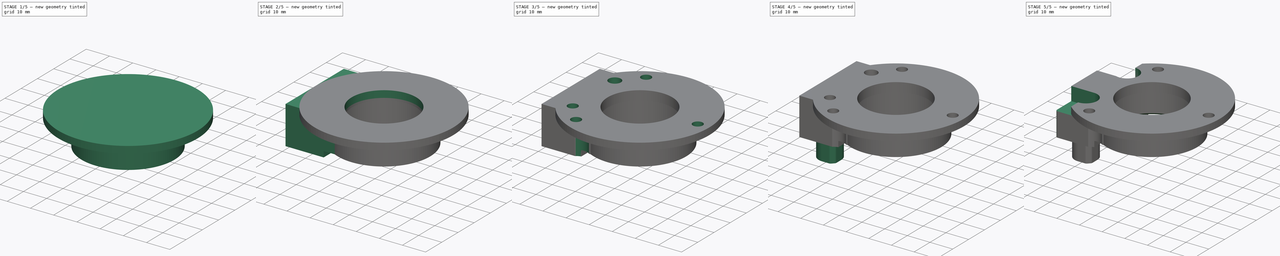
[diagram: build sequence overview — one tinted view per stage of 5, left to right]
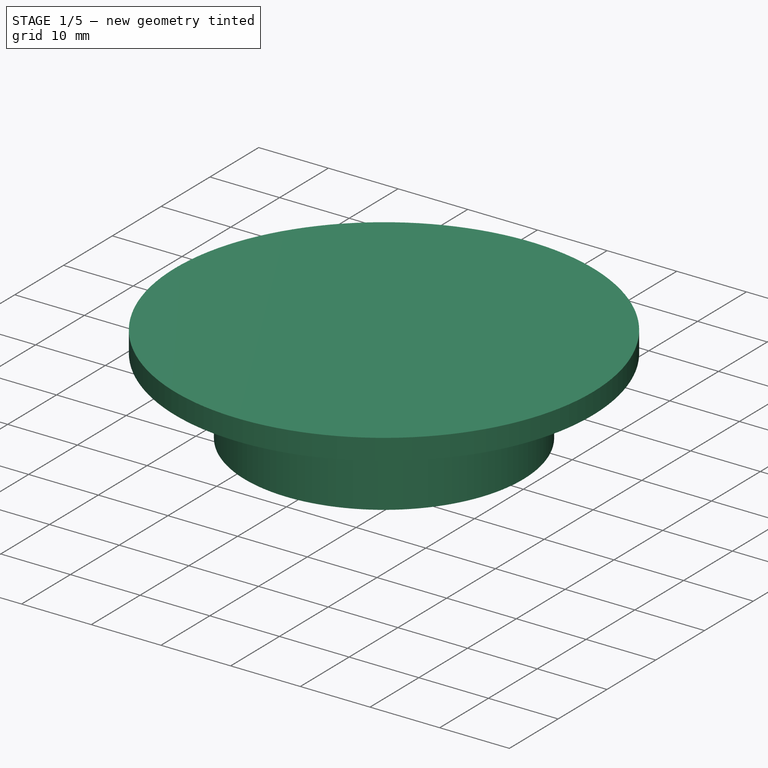
[diagram: stage 1 of 5 — iso view after this stage's code; geometry added in this stage tinted green]
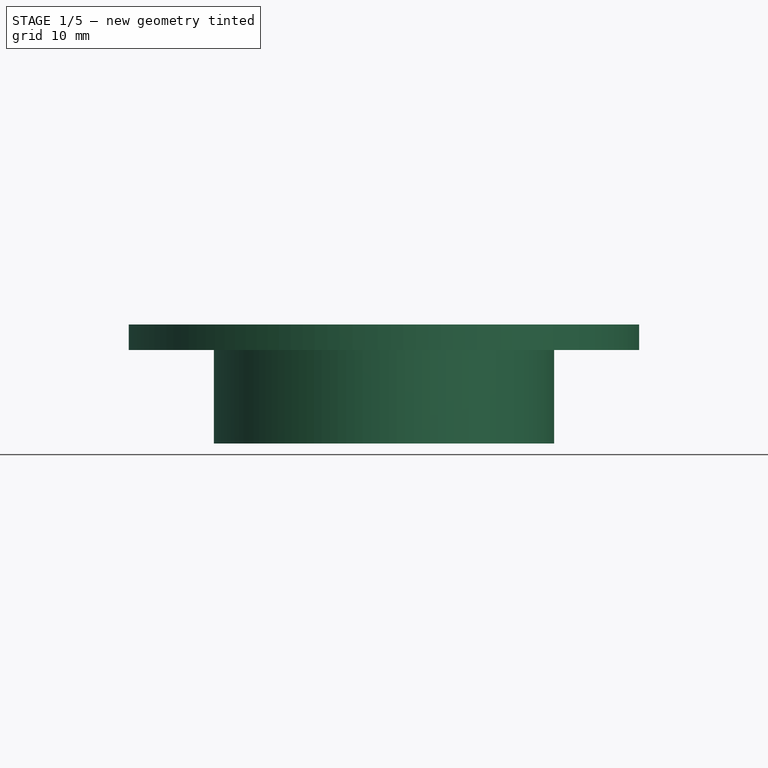
[diagram: stage 1 of 5 — front view after this stage's code; geometry added in this stage tinted green]
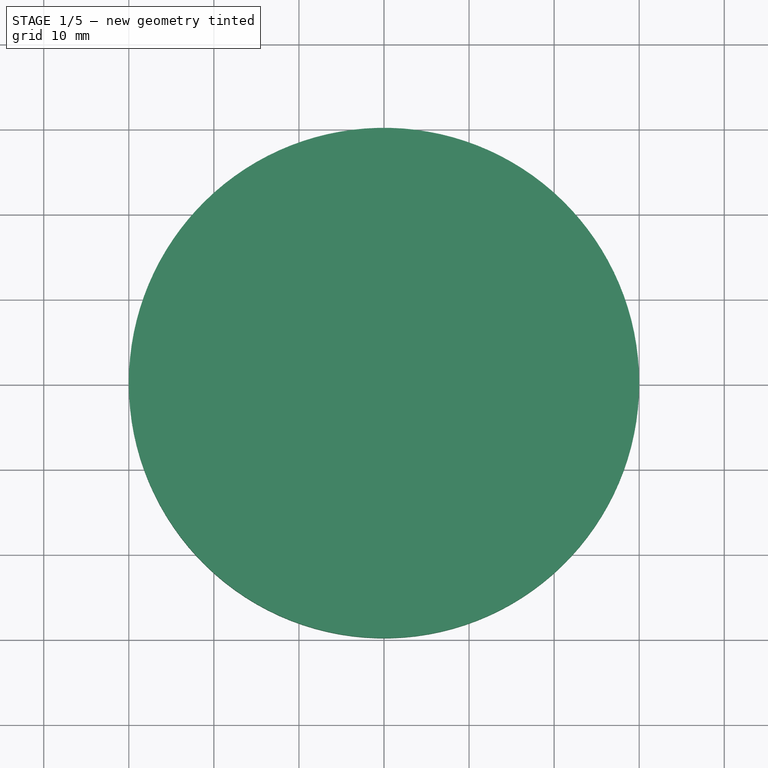
[diagram: stage 1 of 5 — top view after this stage's code; geometry added in this stage tinted green]
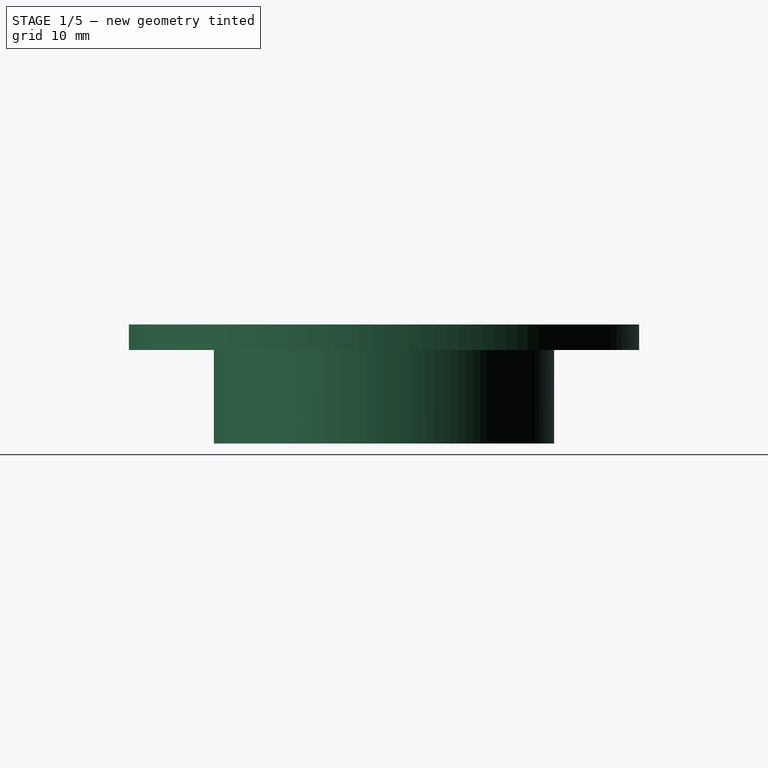
[diagram: stage 1 of 5 — right view after this stage's code; geometry added in this stage tinted green]
FCSTD DOCUMENT  (FreeCAD 0.19R24276 (Git))
Label: SC_v2_bear_support_V2_1
License: All rights reserved
LicenseURL: http://en.wikipedia.org/wiki/All_rights_reserved
objects: Sketcher::SketchObject×13, PartDesign::Pad×6, PartDesign::Pocket×6, PartDesign::Fillet×2, PartDesign::Chamfer×1, PartDesign::Body×1
note: 44 computed .brp shape members not serialized (recipe doc carries the construction recipe); baked Part::Feature solids carry a one-line shape summary decoded from their .brp

FEATURE [Sketcher::SketchObject] Sketch  label="Sketch_d32_d40"
  FullyConstrained = true
  MapMode = 5
  Support = -> [XY_Plane]
  sketch-geometry (2):
    g0: Circle CenterX=0 CenterY=0 CenterZ=0 NormalX=0 NormalY=0 NormalZ=1 AngleXU=0 Radius=16
    g1: Circle CenterX=0 CenterY=0 CenterZ=0 NormalX=0 NormalY=0 NormalZ=1 AngleXU=0 Radius=20
  constraints (4):
    c: Coincident(g0,g-1)
    c: Diameter(g0) = 32
    c: Coincident(g1,g-1)
    c: Diameter(g1) = 40
FEATURE [PartDesign::Pad] Pad  label="Pad_h11"
  Direction = (1,1,1)
  Length = 11
  Length2 = 100
  Profile = -> Sketch
  Type = 0
FEATURE [Sketcher::SketchObject] Sketch001  label="Sketch001_d60"
  FullyConstrained = true
  MapMode = 5
  Placement = pos=(0,0,11) rot=(0,0,1;0rad)
  Support = -> [Pad]
  sketch-geometry (1):
    g0: Circle CenterX=0 CenterY=0 CenterZ=0 NormalX=0 NormalY=0 NormalZ=1 AngleXU=0 Radius=30
  constraints (2):
    c: Coincident(g0,g-1)
    c: Diameter(g0) = 60
FEATURE [PartDesign::Pad] Pad001  label="Pad001_h3"
  BaseFeature = -> Pad
  Direction = (1,1,1)
  Length = 3
  Length2 = 100
  Profile = -> Sketch001
  Type = 0
FEATURE [Sketcher::SketchObject] Sketch002  label="Sketch002_d28_d32"
  FullyConstrained = true
  MapMode = 5
  Placement = pos=(0,0,11) rot=(1,0,0;3.14159rad)
  Support = -> [Pad001]
  sketch-geometry (2):
    g0: Circle CenterX=0 CenterY=0 CenterZ=0 NormalX=0 NormalY=0 NormalZ=1 AngleXU=0 Radius=14
    g1: Circle CenterX=0 CenterY=0 CenterZ=0 NormalX=0 NormalY=0 NormalZ=1 AngleXU=0 Radius=16
  constraints (4):
    c: Coincident(g0,g-1)
    c: Coincident(g1,g-1)
    c: Diameter(g1) = 32
    c: Diameter(g0) = 28
FEATURE [PartDesign::Pad] Pad002  label="Pad002_h1"
  BaseFeature = -> Pad001
  Direction = (1,1,1)
  Length = 1
  Length2 = 100
  Profile = -> Sketch002
  Type = 0
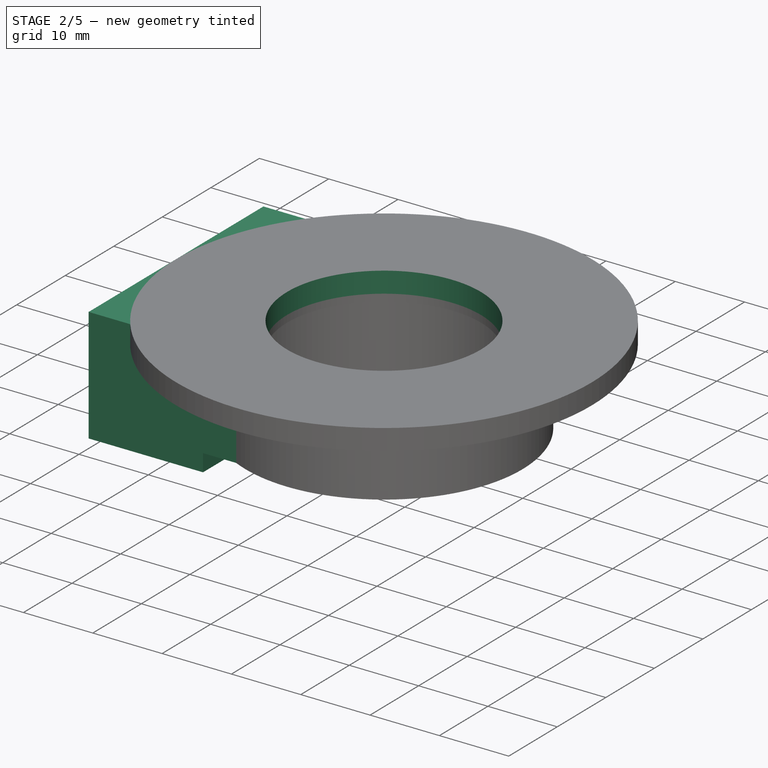
[diagram: stage 2 of 5 — iso view after this stage's code; geometry added in this stage tinted green]
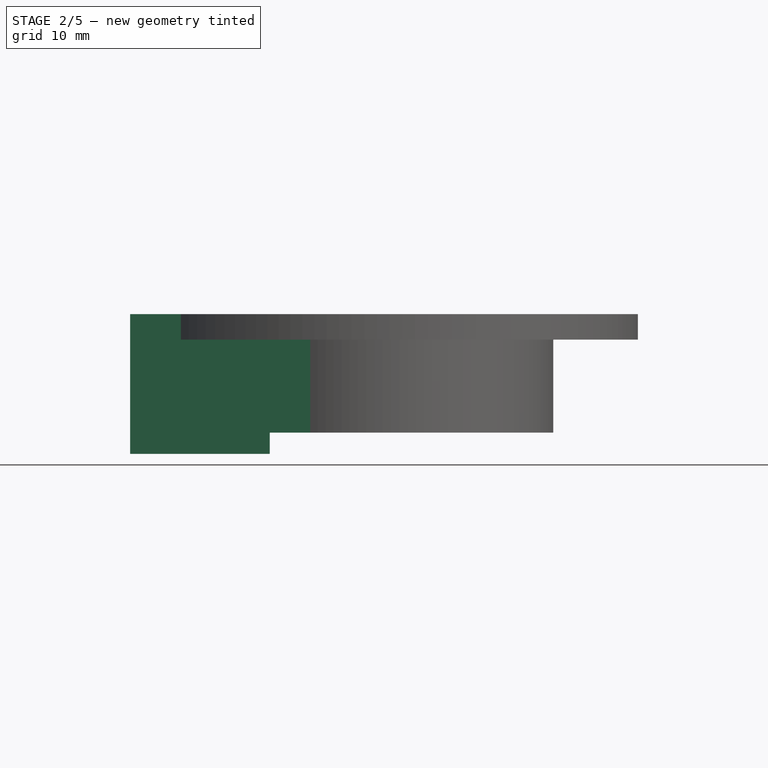
[diagram: stage 2 of 5 — front view after this stage's code; geometry added in this stage tinted green]
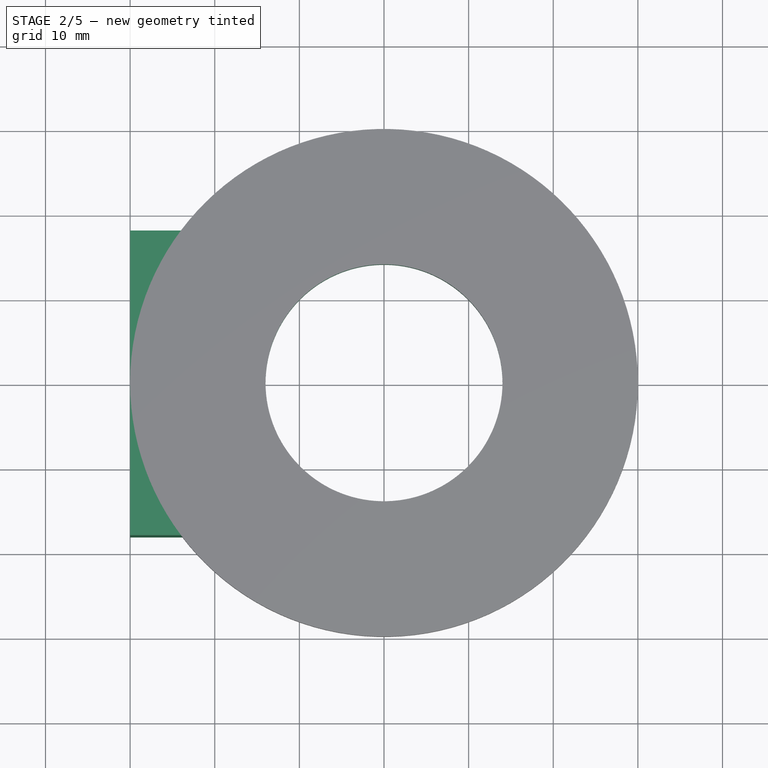
[diagram: stage 2 of 5 — top view after this stage's code; geometry added in this stage tinted green]
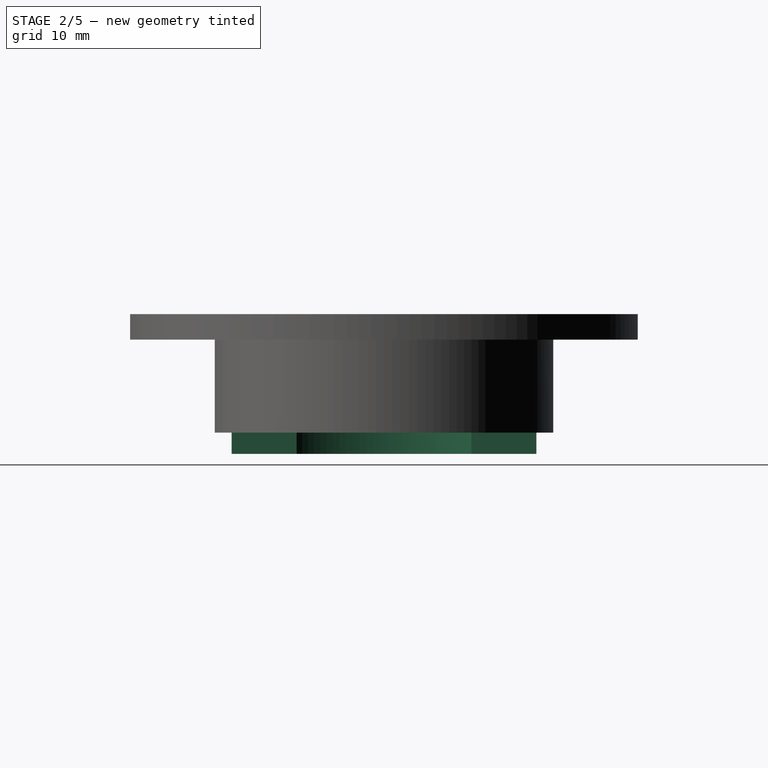
[diagram: stage 2 of 5 — right view after this stage's code; geometry added in this stage tinted green]
FEATURE [Sketcher::SketchObject] Sketch003  label="Sketch003_d28"
  FullyConstrained = true
  MapMode = 5
  Placement = pos=(0,0,11) rot=(1,0,0;3.14159rad)
  Support = -> [Pad002]
  sketch-geometry (1):
    g0: Circle CenterX=0 CenterY=0 CenterZ=0 NormalX=0 NormalY=0 NormalZ=1 AngleXU=0 Radius=14
  constraints (2):
    c: Coincident(g0,g-1)
    c: Diameter(g0) = 28
FEATURE [PartDesign::Pocket] Pocket
  BaseFeature = -> Pad002
  Length = 5
  Length2 = 100
  Profile = -> Sketch003
  Type = 1
FEATURE [Sketcher::SketchObject] Sketch004  label="Sketch004_d32_d40"
  FullyConstrained = false
  MapMode = 5
  Placement = pos=(0,0,0) rot=(1,0,0;3.14159rad)
  Support = -> [Pocket]
  sketch-geometry (11):
    g0: LineSegment StartX=0 StartY=0 StartZ=0 EndX=-7 EndY=0 EndZ=0
    g1: Circle CenterX=-17 CenterY=13 CenterZ=0 NormalX=0 NormalY=0 NormalZ=1 AngleXU=0 Radius=2.5
    g2: Circle CenterX=-17 CenterY=-13 CenterZ=0 NormalX=0 NormalY=0 NormalZ=1 AngleXU=0 Radius=2.5
    g3: LineSegment StartX=-7 StartY=0 StartZ=0 EndX=-17 EndY=0 EndZ=0
    g4: LineSegment StartX=-7 StartY=-18 StartZ=0 EndX=-7 EndY=18 EndZ=0
    g5: ArcOfCircle CenterX=0 CenterY=0 CenterZ=0 NormalX=0 NormalY=0 NormalZ=1 AngleXU=0 Radius=20 StartAngle=4.26136 EndAngle=8.30501
    g6: Circle CenterX=0 CenterY=0 CenterZ=0 NormalX=0 NormalY=0 NormalZ=1 AngleXU=0 Radius=16
    g7: LineSegment StartX=-30 StartY=18 StartZ=0 EndX=-8.7178 EndY=18 EndZ=0
    g8: LineSegment StartX=-8.7178 StartY=-18 StartZ=0 EndX=-30 EndY=-18 EndZ=0
    g9: LineSegment StartX=-30 StartY=-18 StartZ=0 EndX=-30 EndY=18 EndZ=0
    g10: LineSegment StartX=-17 StartY=0 StartZ=0 EndX=-30 EndY=0 EndZ=0
  constraints (29):
    c: Coincident(g0,g-1)
    c: PointOnObject(g0,g-1)
    c: Vertical(g2,g1)
    c: Equal(g1,g2)
    c: Diameter(g1) = 5
    c: DistanceX(g2,g0) = 10
    c: DistanceY(g2,g1) = 26
    c: Coincident(g3,g0)
    c: PointOnObject(g3,g-1)
    c: Symmetric(g2,g1,g3)
    c: Vertical(g4)
    c: Coincident(g5,g-1)
    c: Diameter(g5) = 40
    c: Coincident(g6,g5)
    c: Diameter(g6) = 32
    c: Coincident(g8,g9)
    c: Coincident(g9,g7)
    c: Horizontal(g7)
    c: Horizontal(g8)
    c: Vertical(g9)
    c: Coincident(g7,g5)
    c: Coincident(g10,g3)
    c: Horizontal(g10)
    c: Symmetric(g7,g8,g10)
    c: DistanceY(g9,g9) = 36
    c: DistanceX(g8,g4) = 23
    c: Coincident(g8,g5)
    c: Symmetric(g4,g4,g0)
    c: DistanceX(g8,g5) = 30
FEATURE [PartDesign::Pad] Pad003  label="Pad003_h14"
  BaseFeature = -> Pocket
  Direction = (1,1,1)
  Length = 14
  Length2 = 100
  Profile = -> Sketch004
  Reversed = true
  Type = 0
FEATURE [Sketcher::SketchObject] Sketch005  label="Sketch005_L16,5x36"
  FullyConstrained = true
  MapMode = 5
  Placement = pos=(0,0,0) rot=(1,0,0;3.14159rad)
  Support = -> [Pad003]
  sketch-geometry (7):
    g0: LineSegment StartX=-30 StartY=18 StartZ=0 EndX=-13.5 EndY=18 EndZ=0
    g1: LineSegment StartX=-13.5 StartY=18 StartZ=0 EndX=-13.5 EndY=10.332 EndZ=0
    g2: LineSegment StartX=-13.5 StartY=-18 StartZ=0 EndX=-30 EndY=-18 EndZ=0
    g3: LineSegment StartX=-30 StartY=-18 StartZ=0 EndX=-30 EndY=18 EndZ=0
    g4: LineSegment StartX=0 StartY=0 StartZ=0 EndX=-30 EndY=0 EndZ=0
    g5: ArcOfCircle CenterX=0 CenterY=0 CenterZ=0 NormalX=0 NormalY=0 NormalZ=1 AngleXU=0 Radius=17 StartAngle=2.48835 EndAngle=3.79483
    g6: LineSegment StartX=-13.5 StartY=-10.332 StartZ=0 EndX=-13.5 EndY=-18 EndZ=0
  constraints (20):
    c: Coincident(g0,g1)
    c: Coincident(g6,g2)
    c: Coincident(g2,g3)
    c: Coincident(g3,g0)
    c: Horizontal(g0)
    c: Horizontal(g2)
    c: Vertical(g1)
    c: Vertical(g3)
    c: Coincident(g4,g-1)
    c: PointOnObject(g4,g-1)
    c: Symmetric(g2,g0,g4)
    c: DistanceX(g2,g-1) = 30
    c: DistanceY(g3,g3) = 36
    c: DistanceX(g2,g2) = 16.5
    c: Coincident(g5,g-1)
    c: Diameter(g5) = 34
    c: PointOnObject(g5,g1)
    c: Coincident(g1,g5)
    c: Tangent(g1,g6)
    c: PointOnObject(g6,g5)
FEATURE [PartDesign::Pad] Pad004  label="Pad004_h2,5"
  BaseFeature = -> Pad003
  Direction = (1,1,1)
  Length = 2.5
  Length2 = 100
  Profile = -> Sketch005
  Type = 0
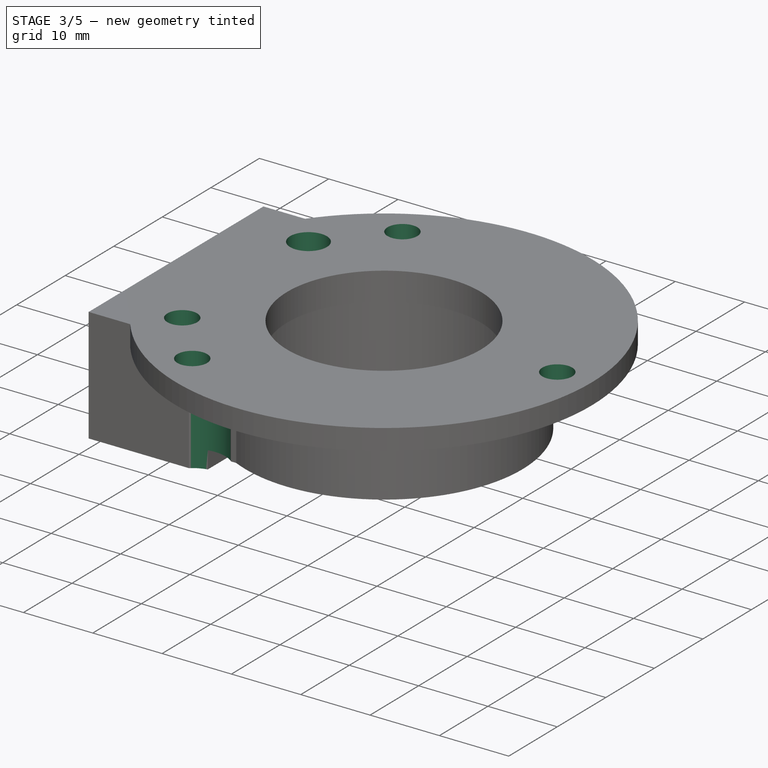
[diagram: stage 3 of 5 — iso view after this stage's code; geometry added in this stage tinted green]
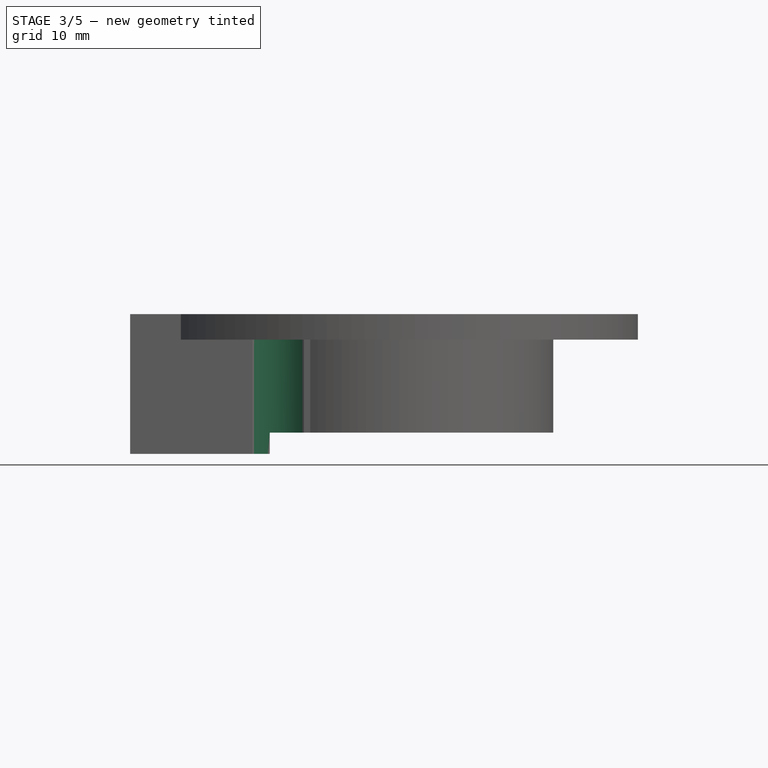
[diagram: stage 3 of 5 — front view after this stage's code; geometry added in this stage tinted green]
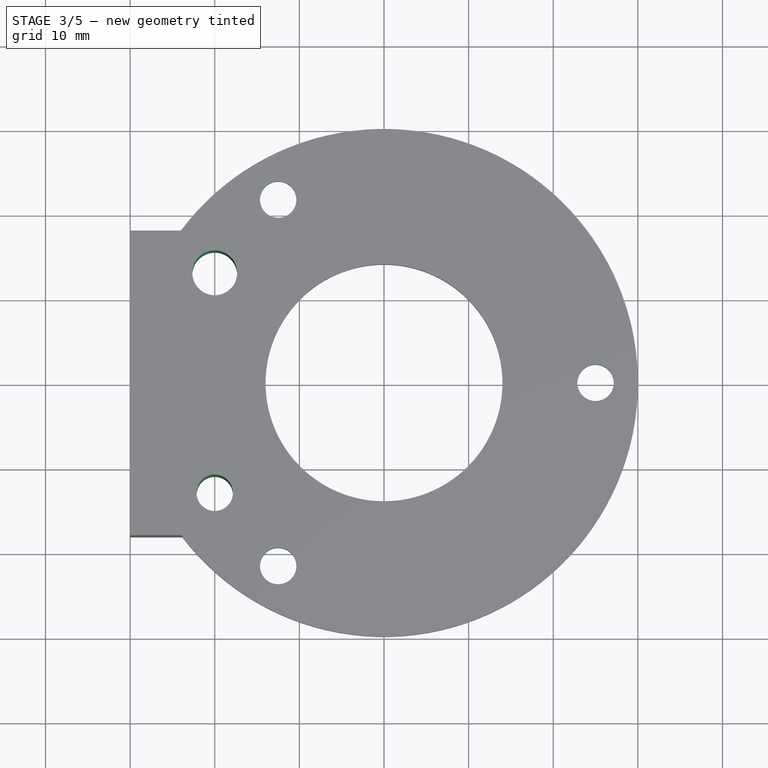
[diagram: stage 3 of 5 — top view after this stage's code; geometry added in this stage tinted green]
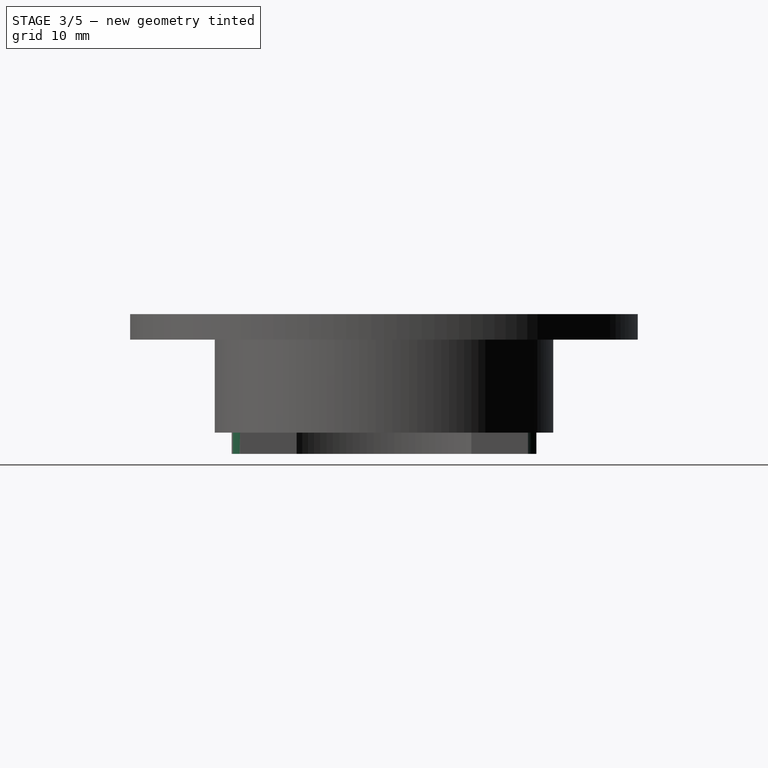
[diagram: stage 3 of 5 — right view after this stage's code; geometry added in this stage tinted green]
FEATURE [Sketcher::SketchObject] Sketch007
  FullyConstrained = true
  MapMode = 5
  Placement = pos=(0,0,-9.5) rot=(1,0,0;3.14159rad)
  sketch-geometry (2):
    g0: Circle CenterX=-20 CenterY=13 CenterZ=0 NormalX=0 NormalY=0 NormalZ=1 AngleXU=0 Radius=2.15
    g1: Circle CenterX=-20 CenterY=-13 CenterZ=0 NormalX=0 NormalY=0 NormalZ=1 AngleXU=0 Radius=2.65
  constraints (6):
    c: Vertical(g1,g0)
    c: Diameter(g1) = 5.3
    c: Diameter(g0) = 4.3
    c: DistanceX(g1,g-1) = 20
    c: DistanceY(g1,g-1) = 13
    c: DistanceY(g-1,g0) = 13
FEATURE [PartDesign::Pocket] Pocket001
  BaseFeature = -> Pad004
  Length = 5
  Length2 = 100
  Profile = -> Sketch007
  Type = 1
FEATURE [Sketcher::SketchObject] Sketch008
  FullyConstrained = true
  MapMode = 5
  Placement = pos=(0,0,11) rot=(1,0,0;3.14159rad)
  Support = -> [Pocket001]
  sketch-geometry (7):
    g0: LineSegment StartX=25 StartY=0 StartZ=0 EndX=-12.5 EndY=21.6506 EndZ=0
    g1: LineSegment StartX=-12.5 StartY=21.6506 StartZ=0 EndX=-12.5 EndY=-21.6506 EndZ=0
    g2: LineSegment StartX=-12.5 StartY=-21.6506 StartZ=0 EndX=25 EndY=0 EndZ=0
    g3: Circle CenterX=0 CenterY=0 CenterZ=0 NormalX=0 NormalY=0 NormalZ=1 AngleXU=0 Radius=25
    g4: Circle CenterX=25 CenterY=0 CenterZ=0 NormalX=0 NormalY=0 NormalZ=1 AngleXU=0 Radius=2.15
    g5: Circle CenterX=-12.5 CenterY=21.6506 CenterZ=0 NormalX=0 NormalY=0 NormalZ=1 AngleXU=0 Radius=2.15
    g6: Circle CenterX=-12.5 CenterY=-21.6506 CenterZ=0 NormalX=0 NormalY=0 NormalZ=1 AngleXU=0 Radius=2.15
  constraints (17):
    c: Coincident(g0,g1)
    c: Coincident(g1,g2)
    c: Coincident(g2,g0)
    c: Equal(g0,g1)
    c: Equal(g0,g2)
    c: PointOnObject(g0,g3)
    c: PointOnObject(g1,g3)
    c: PointOnObject(g2,g3)
    c: Coincident(g3,g-1)
    c: PointOnObject(g2,g-1)
    c: Diameter(g3) = 50
    c: Coincident(g4,g0)
    c: Coincident(g5,g0)
    c: Coincident(g6,g1)
    c: Equal(g6,g4)
    c: Diameter(g4) = 4.3
    c: Equal(g5,g6)
FEATURE [PartDesign::Pocket] Pocket002
  BaseFeature = -> Pocket001
  Length = 5
  Length2 = 100
  Profile = -> Sketch008
  Type = 1
FEATURE [Sketcher::SketchObject] Sketch009
  FullyConstrained = true
  MapMode = 5
  Placement = pos=(0,0,11) rot=(1,0,0;3.14159rad)
  Support = -> [Pocket002]
  sketch-geometry (6):
    g0: LineSegment StartX=25 StartY=-3.6e-15 StartZ=0 EndX=-12.5 EndY=21.6506 EndZ=0
    g1: LineSegment StartX=-12.5 StartY=21.6506 StartZ=0 EndX=-12.5 EndY=-21.6506 EndZ=0
    g2: LineSegment StartX=-12.5 StartY=-21.6506 StartZ=0 EndX=25 EndY=-3.6e-15 EndZ=0
    g3: Circle CenterX=0 CenterY=0 CenterZ=0 NormalX=0 NormalY=0 NormalZ=1 AngleXU=0 Radius=25
    g4: Circle CenterX=-12.5 CenterY=-21.6506 CenterZ=0 NormalX=0 NormalY=0 NormalZ=1 AngleXU=0 Radius=4.75
    g5: Circle CenterX=-12.5 CenterY=21.6506 CenterZ=0 NormalX=0 NormalY=0 NormalZ=1 AngleXU=0 Radius=4.75
  constraints (15):
    c: Coincident(g0,g1)
    c: Coincident(g1,g2)
    c: Coincident(g2,g0)
    c: Equal(g0,g1)
    c: Equal(g0,g2)
    c: PointOnObject(g0,g3)
    c: PointOnObject(g1,g3)
    c: PointOnObject(g2,g3)
    c: Coincident(g3,g-1)
    c: PointOnObject(g2,g-1)
    c: Diameter(g3) = 50
    c: Coincident(g4,g1)
    c: Coincident(g5,g0)
    c: Equal(g4,g5)
    c: Diameter(g4) = 9.5
FEATURE [PartDesign::Pocket] Pocket003
  BaseFeature = -> Pocket002
  Length = 5
  Length2 = 100
  Profile = -> Sketch009
  Reversed = true
  Type = 1
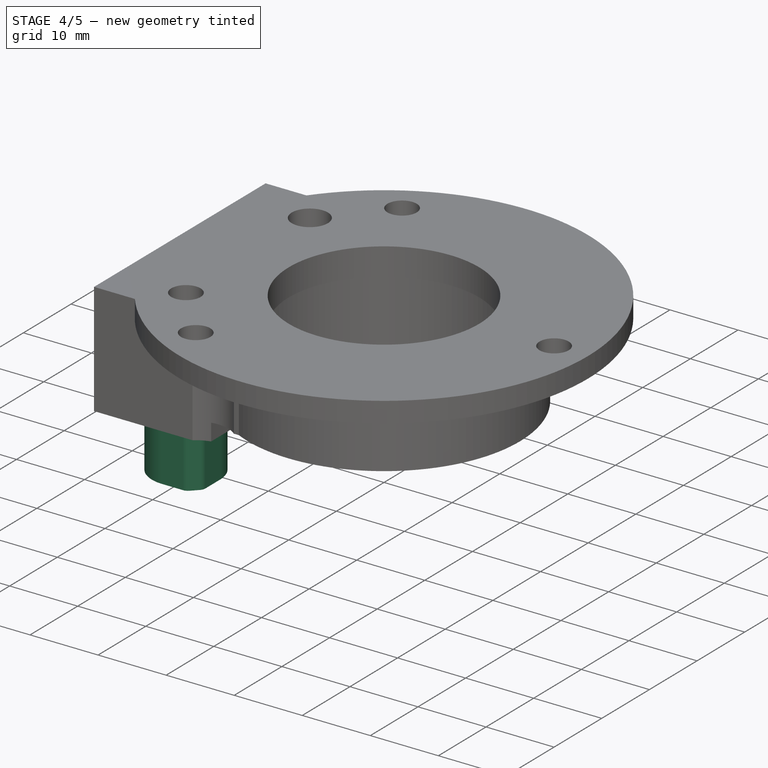
[diagram: stage 4 of 5 — iso view after this stage's code; geometry added in this stage tinted green]
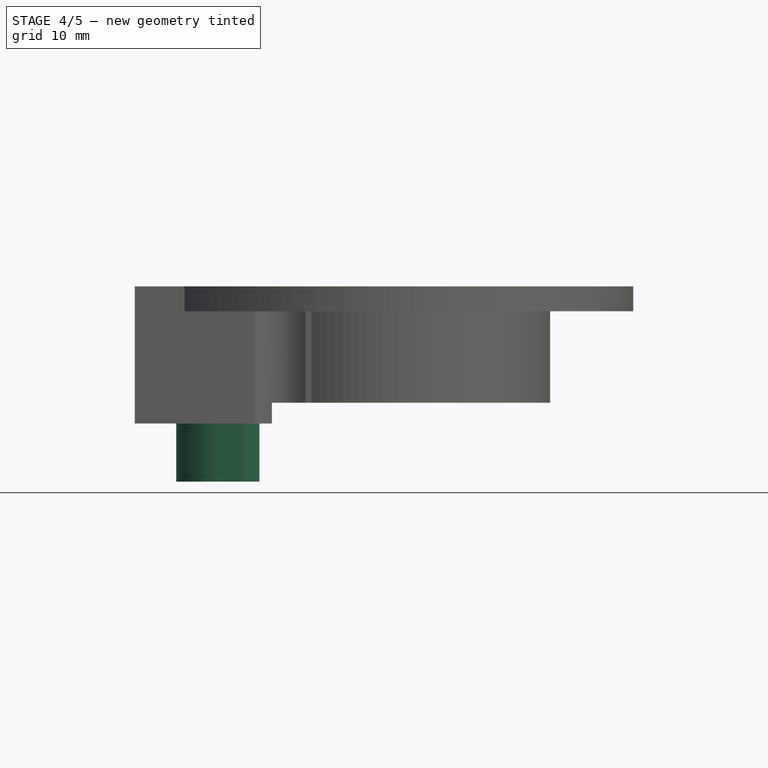
[diagram: stage 4 of 5 — front view after this stage's code; geometry added in this stage tinted green]
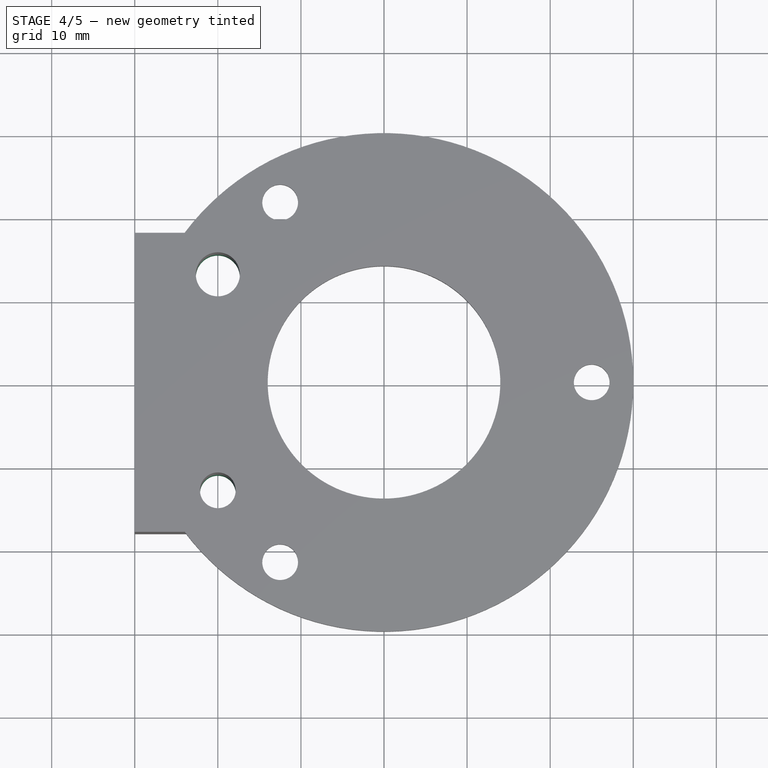
[diagram: stage 4 of 5 — top view after this stage's code; geometry added in this stage tinted green]
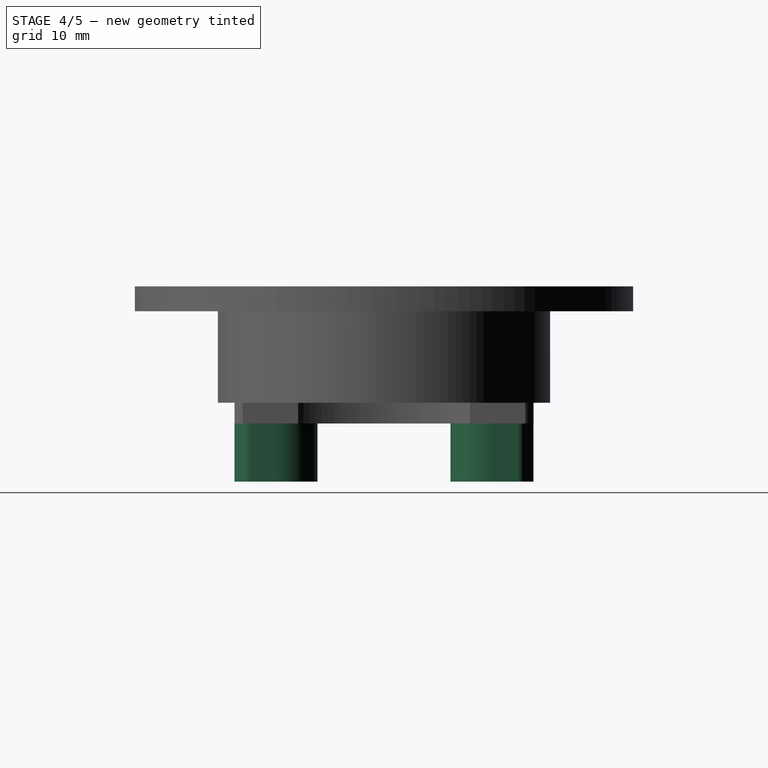
[diagram: stage 4 of 5 — right view after this stage's code; geometry added in this stage tinted green]
FEATURE [Sketcher::SketchObject] Sketch010
  FullyConstrained = false
  MapMode = 5
  Placement = pos=(0,0,-2.5) rot=(1,0,0;3.14159rad)
  Support = -> [Pocket003]
  sketch-geometry (8):
    g0: ArcOfCircle CenterX=-20 CenterY=-13 CenterZ=0 NormalX=0 NormalY=0 NormalZ=1 AngleXU=0 Radius=5 StartAngle=6.28319 EndAngle=11.0358
    g1: ArcOfCircle CenterX=-20 CenterY=13 CenterZ=0 NormalX=0 NormalY=0 NormalZ=1 AngleXU=0 Radius=5 StartAngle=1.5708 EndAngle=6.28319
    g2: LineSegment StartX=-15 StartY=-13 StartZ=0 EndX=-15 EndY=-16.496 EndZ=0
    g3: LineSegment StartX=-19.7989 StartY=-17.996 StartZ=0 EndX=-16.5 EndY=-17.996 EndZ=0
    g4: LineSegment StartX=-15 StartY=13 StartZ=0 EndX=-15 EndY=16.5 EndZ=0
    g5: LineSegment StartX=-20 StartY=18 StartZ=0 EndX=-16.5 EndY=18 EndZ=0
    g6: LineSegment StartX=-16.5 StartY=-17.996 StartZ=0 EndX=-15 EndY=-16.496 EndZ=0
    g7: LineSegment StartX=-16.5 StartY=18 StartZ=0 EndX=-15 EndY=16.5 EndZ=0
  constraints (22):
    c: Vertical(g1,g0)
    c: Diameter(g0) = 10
    c: DistanceX(g0,g-1) = 20
    c: DistanceY(g0,g-1) = 13
    c: DistanceY(g-1,g1) = 13
    c: Equal(g0,g1)
    c: Vertical(g2)
    c: Horizontal(g3)
    c: Coincident(g0,g2)
    c: Coincident(g0,g3)
    c: Vertical(g4)
    c: Tangent(g1,g5) = 1.5708
    c: Tangent(g1,g4) = -1.5708
    c: Horizontal(g5)
    c: Angle(g6,g3) = 2.35619
    c: Coincident(g3,g6)
    c: Coincident(g2,g6)
    c: DistanceX(g3,g2) = 1.5
    c: Coincident(g5,g7)
    c: Coincident(g4,g7)
    c: DistanceX(g5,g4) = 1.5
    c: Angle(g5,g7) = 2.35619
FEATURE [PartDesign::Pad] Pad005
  BaseFeature = -> Pocket003
  Direction = (1,1,1)
  Length = 7
  Length2 = 100
  Profile = -> Sketch010
  Type = 0
FEATURE [Sketcher::SketchObject] Sketch011
  FullyConstrained = true
  MapMode = 5
  Placement = pos=(0,0,-9.5) rot=(1,0,0;3.14159rad)
  Support = -> [Pad005]
  sketch-geometry (2):
    g0: Circle CenterX=-20 CenterY=13 CenterZ=0 NormalX=0 NormalY=0 NormalZ=1 AngleXU=0 Radius=2.15
    g1: Circle CenterX=-20 CenterY=-13 CenterZ=0 NormalX=0 NormalY=0 NormalZ=1 AngleXU=0 Radius=2.65
  constraints (6):
    c: Diameter(g1) = 5.3
    c: Diameter(g0) = 4.3
    c: Vertical(g1,g0)
    c: DistanceX(g0,g-1) = 20
    c: DistanceY(g-1,g0) = 13
    c: DistanceY(g1,g-1) = 13
FEATURE [PartDesign::Pocket] Pocket004
  BaseFeature = -> Pad005
  Length = 5
  Length2 = 100
  Profile = -> Sketch011
  Type = 1
FEATURE [PartDesign::Fillet] Fillet
  Base = -> Pocket004 [Edge117,Edge115,Edge107,Edge102]
  BaseFeature = -> Pocket004
  Radius = 1
  SupportTransform = false
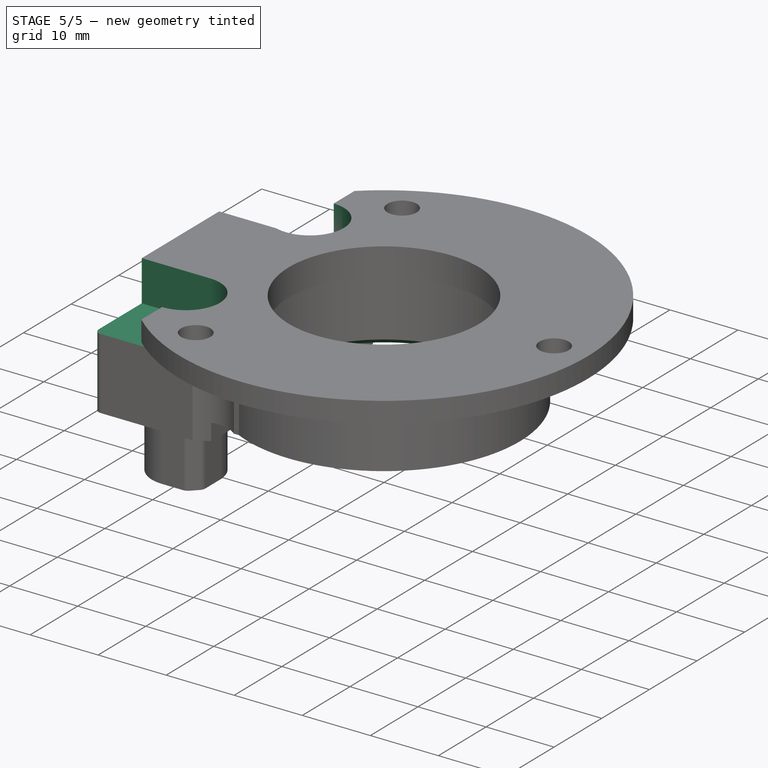
[diagram: stage 5 of 5 — iso view after this stage's code; geometry added in this stage tinted green]
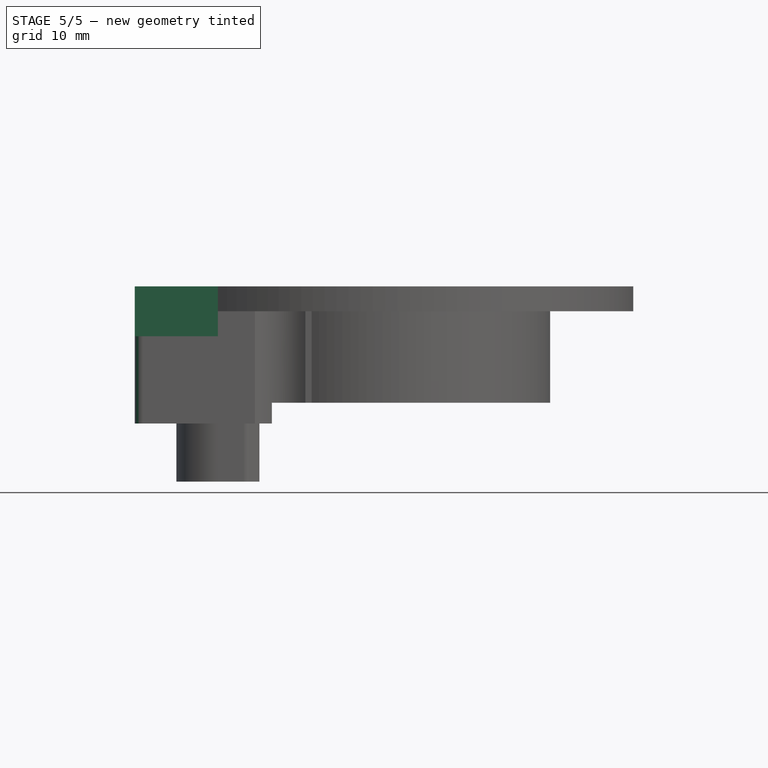
[diagram: stage 5 of 5 — front view after this stage's code; geometry added in this stage tinted green]
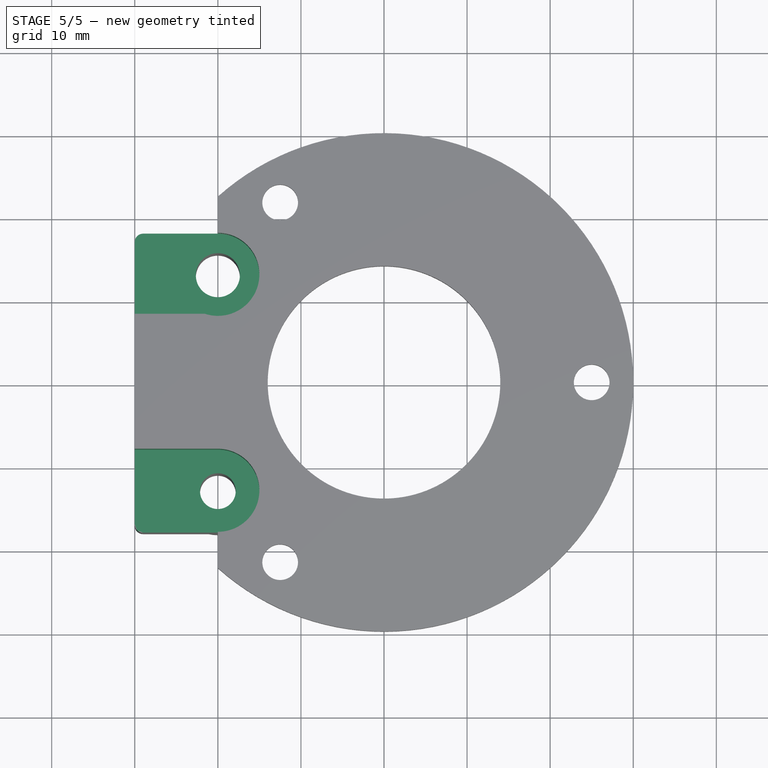
[diagram: stage 5 of 5 — top view after this stage's code; geometry added in this stage tinted green]
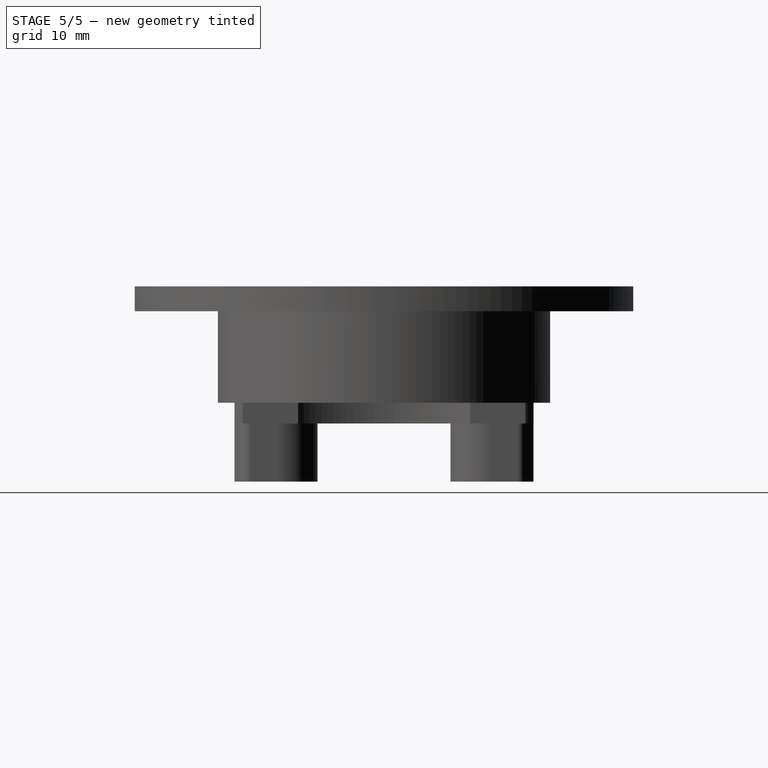
[diagram: stage 5 of 5 — right view after this stage's code; geometry added in this stage tinted green]
FEATURE [PartDesign::Chamfer] Chamfer
  Angle = 45
  Base = -> Fillet [Edge86]
  BaseFeature = -> Fillet
  ChamferType = 0
  FlipDirection = false
  Size = 0.7
  Size2 = 1
  SupportTransform = false
FEATURE [PartDesign::Fillet] Fillet001
  Base = -> Chamfer [Edge80,Edge88,Edge89,Edge74]
  BaseFeature = -> Chamfer
  Radius = 1
  SupportTransform = false
FEATURE [Sketcher::SketchObject] Sketch012
  FullyConstrained = false
  MapMode = 5
  Placement = pos=(0,0,14) rot=(0,0,1;0rad)
  Support = -> [Fillet001]
  sketch-geometry (10):
    g0: ArcOfCircle CenterX=-20 CenterY=13 CenterZ=0 NormalX=0 NormalY=0 NormalZ=1 AngleXU=0 Radius=5 StartAngle=4.39651 EndAngle=7.85334
    g1: LineSegment StartX=-21.5532 StartY=8.24738 StartZ=0 EndX=-36.5518 EndY=8.24738 EndZ=0
    g2: LineSegment StartX=-20 StartY=13 StartZ=0 EndX=-20 EndY=8.24738 EndZ=0
    g3: LineSegment StartX=-20 StartY=13 StartZ=0 EndX=-20 EndY=18 EndZ=0
    g4: LineSegment StartX=-19.9968 StartY=18 StartZ=0 EndX=-19.9968 EndY=34.2767 EndZ=0
    g5: LineSegment StartX=-19.9968 StartY=34.2767 StartZ=0 EndX=-36.5518 EndY=8.24738 EndZ=0
    g6: ArcOfCircle CenterX=-20 CenterY=-13 CenterZ=0 NormalX=0 NormalY=0 NormalZ=1 AngleXU=0 Radius=5 StartAngle=4.71239 EndAngle=7.85398
    g7: LineSegment StartX=-20 StartY=-8 StartZ=0 EndX=-40.4012 EndY=-8 EndZ=0
    g8: LineSegment StartX=-20 StartY=-18 StartZ=0 EndX=-20 EndY=-33.1215 EndZ=0
    g9: LineSegment StartX=-20 StartY=-33.1215 StartZ=0 EndX=-40.4012 EndY=-8 EndZ=0
  constraints (23):
    c: DistanceX(g0,g-1) = 20
    c: DistanceY(g-1,g0) = 13
    c: Diameter(g0) = 10
    c: Horizontal(g1)
    c: Coincident(g2,g0)
    c: PointOnObject(g2,g1)
    c: Coincident(g3,g0)
    c: Vertical(g3)
    c: Vertical(g2)
    c: Coincident(g0,g1)
    c: Coincident(g4,g0)
    c: Vertical(g4)
    c: Coincident(g5,g4)
    c: Coincident(g5,g1)
    c: Equal(g6,g0)
    c: Vertical(g0,g6)
    c: DistanceY(g6,g-1) = 13
    c: Horizontal(g7)
    c: Vertical(g8)
    c: Coincident(g9,g8)
    c: Coincident(g9,g7)
    c: Coincident(g6,g8)
    c: Tangent(g6,g7) = -1.5708
FEATURE [PartDesign::Pocket] Pocket005
  BaseFeature = -> Fillet001
  Length = 6
  Length2 = 100
  Profile = -> Sketch012
  Type = 0
FEATURE [Sketcher::SketchObject] Sketch013
  FullyConstrained = false
  MapMode = 5
  Placement = pos=(0,0,14) rot=(0,0,1;0rad)
  Support = -> [Pocket005]
  sketch-geometry (2):
    g0: Circle CenterX=58.899 CenterY=0 CenterZ=0 NormalX=0 NormalY=0 NormalZ=1 AngleXU=0 Radius=7.65485
    g1: Circle CenterX=98.899 CenterY=0 CenterZ=0 NormalX=0 NormalY=0 NormalZ=1 AngleXU=0 Radius=7.16557
  constraints (3):
    c: PointOnObject(g0,g-1)
    c: PointOnObject(g1,g-1)
    c: DistanceX(g0,g1) = 40
FEATURE [PartDesign::Body] Body
  Group = -> [Sketch,Pad,Sketch001,Pad001,Sketch002,Pad002,Sketch003,Pocket,Sketch004,Pad003,Sketch005,Pad004,Sketch007,Pocket001,Sketch008,Pocket002,Sketch009,Pocket003,Sketch010,Pad005,Sketch011,Pocket004,Fillet,Chamfer,Fillet001,Sketch012,Pocket005,Sketch013]
  Origin = -> Origin
  Tip = -> Pocket005
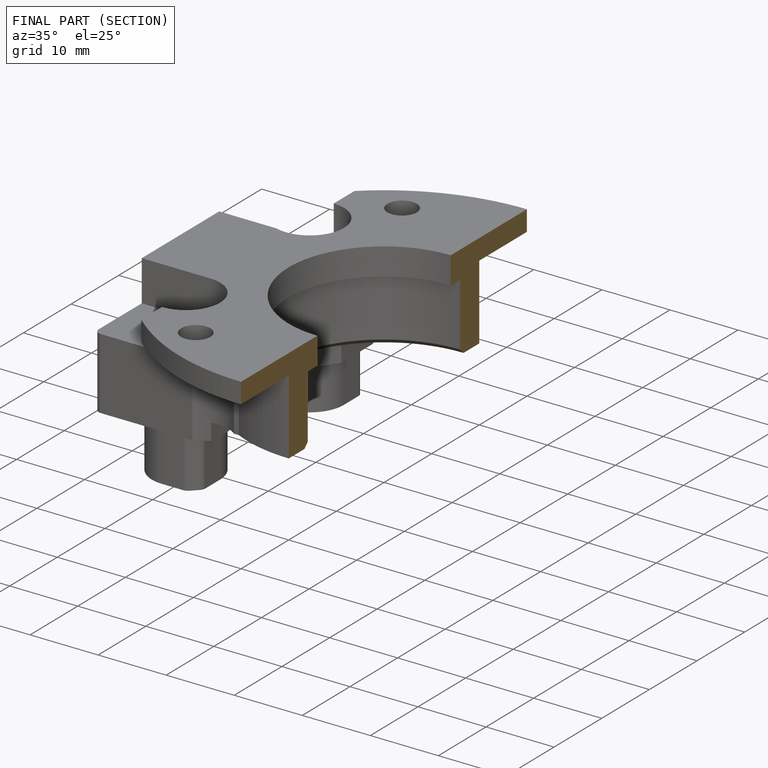
[diagram: finished part — half-section view (interior)]
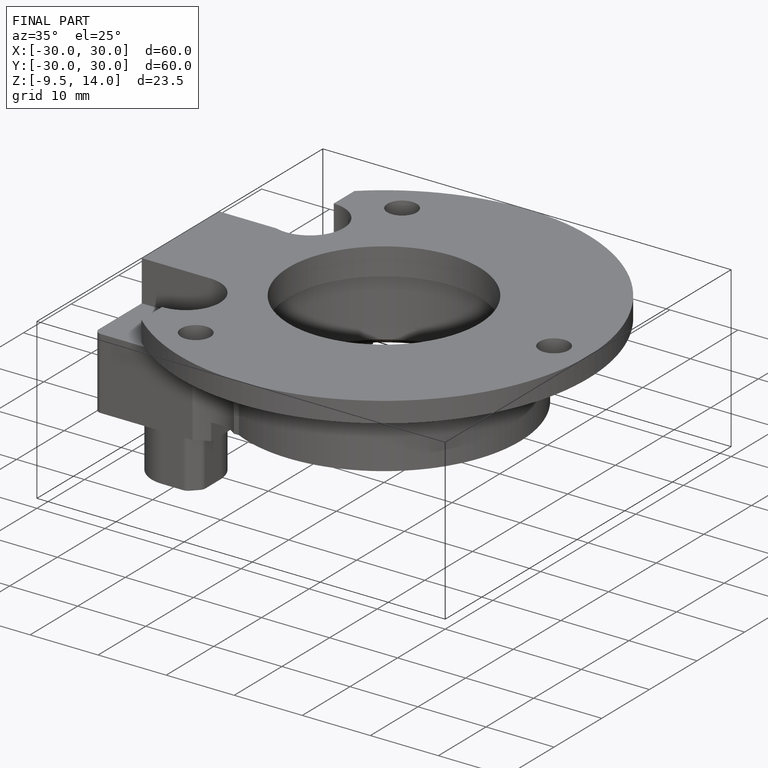
[diagram: finished part — iso view with bounding-box wireframe]
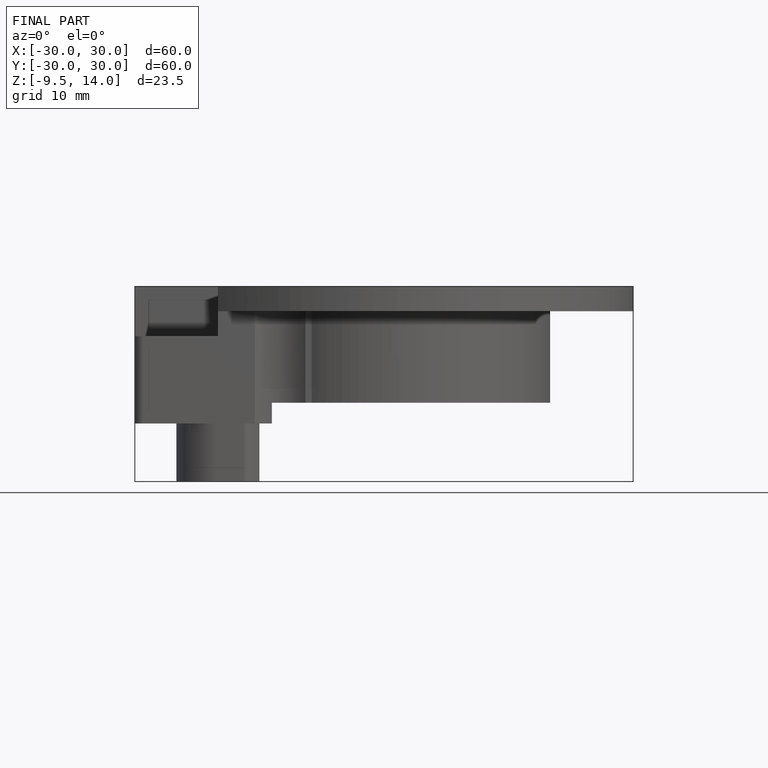
[diagram: finished part — front view with bounding-box wireframe]
